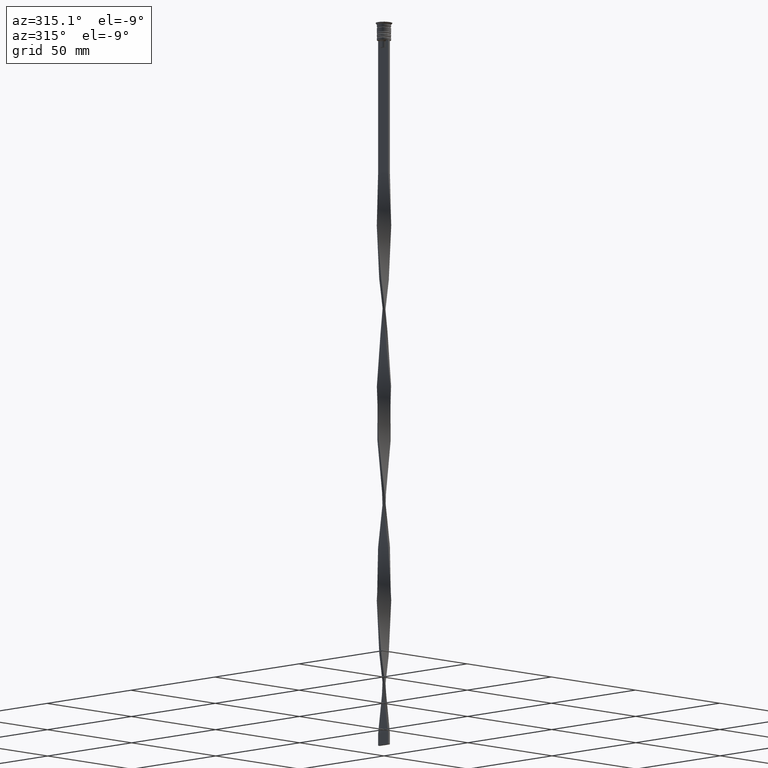
[diagram: clean part render]
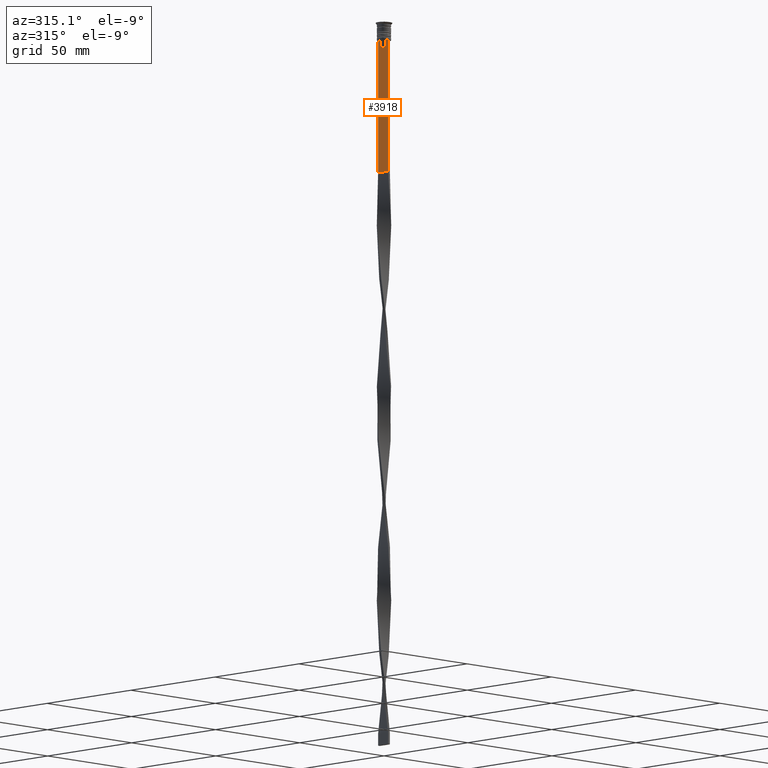
[diagram: same view with one face highlighted and labeled with its STEP entity id]
A machine part, auxiliary view. The second image highlights one B-rep face of the part: STEP entity #3918.
In plain terms, the highlighted planar face has unit normal (-1, 0, 0).
Its self-contained STEP definition (entity closure, byte-faithful):
#4 = LINE ( 'NONE', #281, #2453 ) ;
#13 = EDGE_LOOP ( 'NONE', ( #1552, #1497, #559, #3242, #2058, #1045, #3278, #1874, #2025, #3345, #2482, #698 ) ) ;
#68 = CARTESIAN_POINT ( 'NONE',  ( -0.5000000000000001110, -1.833030277982335532, -7.500000000000000000 ) ) ;
#74 = CARTESIAN_POINT ( 'NONE',  ( -0.5000000000000001110, 1.484355510416485391, -7.834966642958598015 ) ) ;
#232 = VERTEX_POINT ( 'NONE', #1588 ) ;
#281 = CARTESIAN_POINT ( 'NONE',  ( -0.5000000000000001110, 1.399999999999997691, -10.49999999999999822 ) ) ;
#285 = LINE ( 'NONE', #2378, #1371 ) ;
#321 = LINE ( 'NONE', #582, #1550 ) ;
#404 = PLANE ( 'NONE',  #734 ) ;
#414 = LINE ( 'NONE', #3236, #822 ) ;
#421 = CARTESIAN_POINT ( 'NONE',  ( -0.5000000000000001110, -1.484307477388859153, -7.835011508197190722 ) ) ;
#426 = CARTESIAN_POINT ( 'NONE',  ( -0.5000000000000001110, 1.833030277982335532, -7.500000000000000000 ) ) ;
#499 = DIRECTION ( 'NONE',  ( 0.000000000000000000, -1.000000000000000000, 0.000000000000000000 ) ) ;
#520 = CARTESIAN_POINT ( 'NONE',  ( -0.5000000000000001110, 2.856571371417139904, -7.500000000000000000 ) ) ;
#559 = ORIENTED_EDGE ( 'NONE', *, *, #1943, .F. ) ;
#582 = CARTESIAN_POINT ( 'NONE',  ( -0.5000000000000001110, -3.000000000000000000, -7.500000000000000000 ) ) ;
#597 = EDGE_CURVE ( 'NONE', #3241, #1154, #414, .T. ) ;
#602 = VECTOR ( 'NONE', #3840, 1000.000000000000000 ) ;
#646 = VERTEX_POINT ( 'NONE', #520 ) ;
#664 = CARTESIAN_POINT ( 'NONE',  ( -0.5000000000000001110, 1.307669683062199217, -8.000000000000000000 ) ) ;
#698 = ORIENTED_EDGE ( 'NONE', *, *, #1666, .F. ) ;
#734 = AXIS2_PLACEMENT_3D ( 'NONE', #3762, #2255, #1880 ) ;
#822 = VECTOR ( 'NONE', #499, 1000.000000000000000 ) ;
#979 = EDGE_CURVE ( 'NONE', #3616, #3241, #3126, .T. ) ;
#990 = VECTOR ( 'NONE', #2100, 1000.000000000000000 ) ;
#1045 = ORIENTED_EDGE ( 'NONE', *, *, #3490, .F. ) ;
#1074 = DIRECTION ( 'NONE',  ( 0.000000000000000000, -1.000000000000000000, 0.000000000000000000 ) ) ;
#1154 = VERTEX_POINT ( 'NONE', #1322 ) ;
#1187 = VERTEX_POINT ( 'NONE', #3810 ) ;
#1236 = VERTEX_POINT ( 'NONE', #2029 ) ;
#1296 = DIRECTION ( 'NONE',  ( -0.000000000000000000, -0.000000000000000000, 1.000000000000000000 ) ) ;
#1321 = CARTESIAN_POINT ( 'NONE',  ( -0.5000000000000001110, 1.659046061654642523, -7.667851756010361619 ) ) ;
#1322 = CARTESIAN_POINT ( 'NONE',  ( -0.5000000000000001110, -3.000000000000000000, -7.500000000000000000 ) ) ;
#1364 = B_SPLINE_CURVE_WITH_KNOTS ( 'NONE', 3,
 ( #426, #1321, #74, #3125 ),
 .UNSPECIFIED., .F., .F.,
 ( 4, 4 ),
 ( 0.003278537493109840491, 0.004003794023484932504 ),
 .UNSPECIFIED. ) ;
#1371 = VECTOR ( 'NONE', #3601, 1000.000000000000000 ) ;
#1497 = ORIENTED_EDGE ( 'NONE', *, *, #3398, .F. ) ;
#1550 = VECTOR ( 'NONE', #1790, 1000.000000000000000 ) ;
#1552 = ORIENTED_EDGE ( 'NONE', *, *, #2129, .F. ) ;
#1588 = CARTESIAN_POINT ( 'NONE',  ( -0.5000000000000001110, 1.307669683062199217, -10.49999999999999822 ) ) ;
#1593 = CARTESIAN_POINT ( 'NONE',  ( -0.5000000000000001110, -1.659011726860414093, -7.667884880598472286 ) ) ;
#1596 = CARTESIAN_POINT ( 'NONE',  ( -0.5000000000000001110, -1.307669683062199217, 0.000000000000000000 ) ) ;
#1666 = EDGE_CURVE ( 'NONE', #2519, #232, #2618, .T. ) ;
#1757 = VECTOR ( 'NONE', #1296, 1000.000000000000000 ) ;
#1780 = VERTEX_POINT ( 'NONE', #3537 ) ;
#1790 = DIRECTION ( 'NONE',  ( 0.000000000000000000, -1.000000000000000000, 0.000000000000000000 ) ) ;
#1815 = CARTESIAN_POINT ( 'NONE',  ( -0.5000000000000001110, 3.000000000000000000, -7.500000000000000000 ) ) ;
#1874 = ORIENTED_EDGE ( 'NONE', *, *, #979, .F. ) ;
#1880 = DIRECTION ( 'NONE',  ( 0.000000000000000000, 0.000000000000000000, 1.000000000000000000 ) ) ;
#1896 = VECTOR ( 'NONE', #3767, 1000.000000000000000 ) ;
#1943 = EDGE_CURVE ( 'NONE', #3452, #646, #321, .T. ) ;
#2025 = ORIENTED_EDGE ( 'NONE', *, *, #2407, .F. ) ;
#2029 = CARTESIAN_POINT ( 'NONE',  ( -0.5000000000000001110, -3.000000000000000000, -63.50000000000000000 ) ) ;
#2043 = CARTESIAN_POINT ( 'NONE',  ( -0.5000000000000001110, 3.000000000000000000, -63.50000000000000000 ) ) ;
#2058 = ORIENTED_EDGE ( 'NONE', *, *, #2202, .F. ) ;
#2060 = EDGE_CURVE ( 'NONE', #232, #2784, #4, .T. ) ;
#2091 = B_SPLINE_CURVE_WITH_KNOTS ( 'NONE', 3,
 ( #3707, #421, #1593, #68 ),
 .UNSPECIFIED., .F., .F.,
 ( 4, 4 ),
 ( 0.007225659348748070081, 0.007950554640278040958 ),
 .UNSPECIFIED. ) ;
#2100 = DIRECTION ( 'NONE',  ( 0.000000000000000000, 0.000000000000000000, -1.000000000000000000 ) ) ;
#2129 = EDGE_CURVE ( 'NONE', #1780, #2519, #1364, .T. ) ;
#2182 = CARTESIAN_POINT ( 'NONE',  ( -0.5000000000000001110, -3.000000000000000000, -63.50000000000000000 ) ) ;
#2202 = EDGE_CURVE ( 'NONE', #1236, #2760, #3403, .T. ) ;
#2255 = DIRECTION ( 'NONE',  ( -1.000000000000000000, 0.000000000000000000, 0.000000000000000000 ) ) ;
#2304 = CARTESIAN_POINT ( 'NONE',  ( -0.5000000000000001110, -3.000000000000000000, -7.500000000000000000 ) ) ;
#2378 = CARTESIAN_POINT ( 'NONE',  ( -0.5000000000000001110, 3.000000000000000000, -1.417237469701779329 ) ) ;
#2407 = EDGE_CURVE ( 'NONE', #1187, #3616, #2091, .T. ) ;
#2453 = VECTOR ( 'NONE', #3620, 1000.000000000000000 ) ;
#2482 = ORIENTED_EDGE ( 'NONE', *, *, #2060, .F. ) ;
#2486 = DIRECTION ( 'NONE',  ( 0.000000000000000000, 1.000000000000000000, 0.000000000000000000 ) ) ;
#2519 = VERTEX_POINT ( 'NONE', #664 ) ;
#2586 = VECTOR ( 'NONE', #1074, 1000.000000000000000 ) ;
#2596 = LINE ( 'NONE', #3818, #2586 ) ;
#2618 = LINE ( 'NONE', #3862, #602 ) ;
#2701 = CARTESIAN_POINT ( 'NONE',  ( -0.5000000000000001110, -1.833030277982335532, -7.500000000000000000 ) ) ;
#2760 = VERTEX_POINT ( 'NONE', #2043 ) ;
#2784 = VERTEX_POINT ( 'NONE', #3243 ) ;
#3125 = CARTESIAN_POINT ( 'NONE',  ( -0.5000000000000001110, 1.307669683062199217, -8.000000000000000000 ) ) ;
#3126 = LINE ( 'NONE', #2304, #1896 ) ;
#3159 = FACE_OUTER_BOUND ( 'NONE', #13, .T. ) ;
#3236 = CARTESIAN_POINT ( 'NONE',  ( -0.5000000000000001110, -3.000000000000000000, -7.500000000000000000 ) ) ;
#3241 = VERTEX_POINT ( 'NONE', #3773 ) ;
#3242 = ORIENTED_EDGE ( 'NONE', *, *, #3581, .T. ) ;
#3243 = CARTESIAN_POINT ( 'NONE',  ( -0.5000000000000001110, -1.307669683062199217, -10.49999999999999822 ) ) ;
#3278 = ORIENTED_EDGE ( 'NONE', *, *, #597, .F. ) ;
#3279 = LINE ( 'NONE', #3582, #990 ) ;
#3345 = ORIENTED_EDGE ( 'NONE', *, *, #3943, .F. ) ;
#3398 = EDGE_CURVE ( 'NONE', #646, #1780, #2596, .T. ) ;
#3403 = LINE ( 'NONE', #2182, #3672 ) ;
#3452 = VERTEX_POINT ( 'NONE', #1815 ) ;
#3478 = LINE ( 'NONE', #1596, #1757 ) ;
#3490 = EDGE_CURVE ( 'NONE', #1154, #1236, #3279, .T. ) ;
#3537 = CARTESIAN_POINT ( 'NONE',  ( -0.5000000000000001110, 1.833030277982335532, -7.500000000000000000 ) ) ;
#3581 = EDGE_CURVE ( 'NONE', #3452, #2760, #285, .T. ) ;
#3582 = CARTESIAN_POINT ( 'NONE',  ( -0.5000000000000001110, -3.000000000000000000, -1.417237469701779329 ) ) ;
#3601 = DIRECTION ( 'NONE',  ( 0.000000000000000000, 0.000000000000000000, -1.000000000000000000 ) ) ;
#3616 = VERTEX_POINT ( 'NONE', #2701 ) ;
#3620 = DIRECTION ( 'NONE',  ( 0.000000000000000000, -1.000000000000000000, 0.000000000000000000 ) ) ;
#3672 = VECTOR ( 'NONE', #2486, 1000.000000000000000 ) ;
#3707 = CARTESIAN_POINT ( 'NONE',  ( -0.5000000000000001110, -1.307669683062199217, -8.000000000000000000 ) ) ;
#3762 = CARTESIAN_POINT ( 'NONE',  ( -0.5000000000000001110, -3.000000000000000000, -1.417237469701779329 ) ) ;
#3767 = DIRECTION ( 'NONE',  ( 0.000000000000000000, -1.000000000000000000, 0.000000000000000000 ) ) ;
#3773 = CARTESIAN_POINT ( 'NONE',  ( -0.5000000000000001110, -2.856571371417139904, -7.500000000000000000 ) ) ;
#3810 = CARTESIAN_POINT ( 'NONE',  ( -0.5000000000000001110, -1.307669683062199217, -8.000000000000000000 ) ) ;
#3818 = CARTESIAN_POINT ( 'NONE',  ( -0.5000000000000001110, -3.000000000000000000, -7.500000000000000000 ) ) ;
#3840 = DIRECTION ( 'NONE',  ( 0.000000000000000000, 0.000000000000000000, -1.000000000000000000 ) ) ;
#3862 = CARTESIAN_POINT ( 'NONE',  ( -0.5000000000000001110, 1.307669683062199217, 0.000000000000000000 ) ) ;
#3918 = ADVANCED_FACE ( 'NONE', ( #3159 ), #404, .T. ) ;
#3943 = EDGE_CURVE ( 'NONE', #2784, #1187, #3478, .T. ) ;